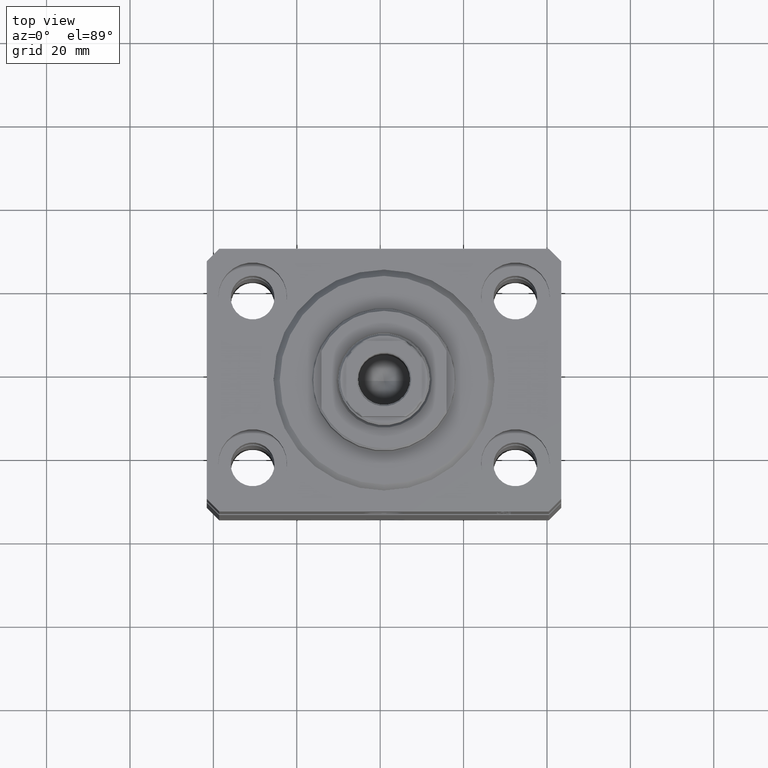
[diagram: clean part render]
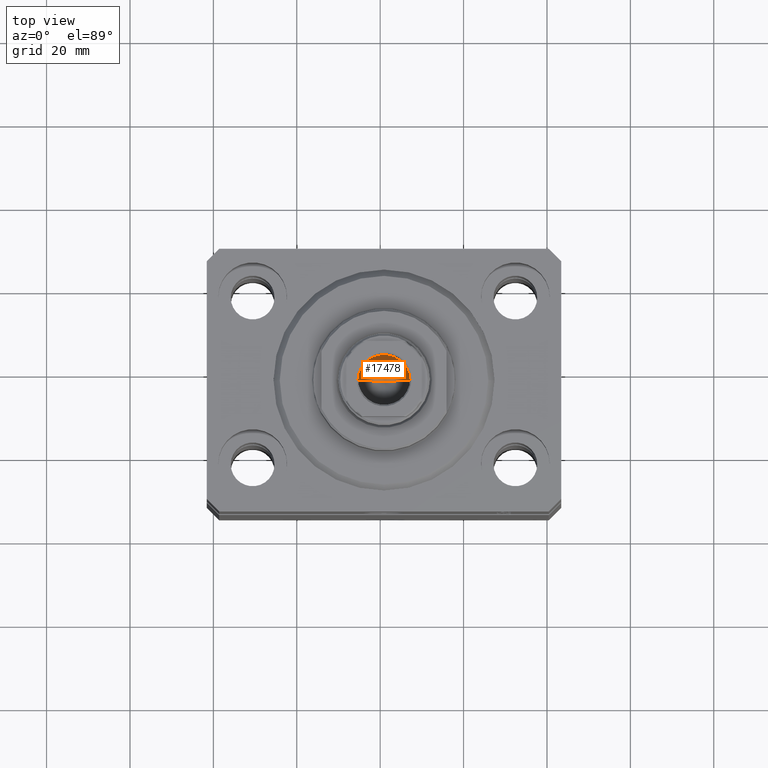
[diagram: same view with one face highlighted and labeled with its STEP entity id]
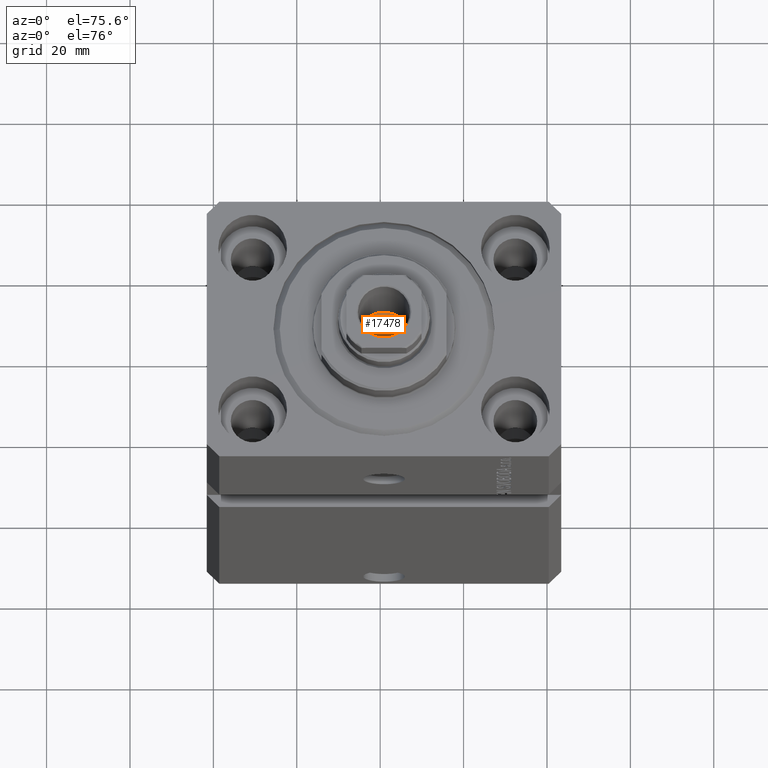
[diagram: same view with one face highlighted and labeled with its STEP entity id]
A machine part, top view. The second image highlights one B-rep face of the part: STEP entity #17478.
A second angle (auxiliary view) of the same face is appended — the face is thin or edge-on in the first view.
In plain terms, the highlighted conical surface has half-angle 59 deg.
Its self-contained STEP definition (entity closure, byte-faithful):
#1386 = DIRECTION ( 'NONE',  ( -0.8571673007021115565, 1.049727191138617710E-16, 0.5150380749100554878 ) ) ;
#2218 = LINE ( 'NONE', #25649, #43737 ) ;
#3211 = EDGE_CURVE ( 'NONE', #21120, #17275, #2218, .T. ) ;
#4603 = DIRECTION ( 'NONE',  ( 1.000000000000000000, 0.000000000000000000, 0.000000000000000000 ) ) ;
#7469 = EDGE_CURVE ( 'NONE', #21120, #38998, #16659, .T. ) ;
#9025 = VECTOR ( 'NONE', #9845, 1000.000000000000000 ) ;
#9644 = ORIENTED_EDGE ( 'NONE', *, *, #3211, .F. ) ;
#9845 = DIRECTION ( 'NONE',  ( 0.8571673007021115565, 0.000000000000000000, 0.5150380749100554878 ) ) ;
#10089 = EDGE_LOOP ( 'NONE', ( #9644, #15693, #13094 ) ) ;
#10518 = CARTESIAN_POINT ( 'NONE',  ( 6.249999999999993783, 0.000000000000000000, 103.5000000000000142 ) ) ;
#11638 = DIRECTION ( 'NONE',  ( -0.000000000000000000, -0.000000000000000000, 1.000000000000000000 ) ) ;
#12965 = AXIS2_PLACEMENT_3D ( 'NONE', #40352, #23383, #43990 ) ;
#13094 = ORIENTED_EDGE ( 'NONE', *, *, #22928, .T. ) ;
#14141 = CARTESIAN_POINT ( 'NONE',  ( -6.249999999999993783, 7.654042494670949718E-16, 103.5000000000000142 ) ) ;
#14620 = CARTESIAN_POINT ( 'NONE',  ( 0.000000000000000000, 0.000000000000000000, 103.5000000000000142 ) ) ;
#15693 = ORIENTED_EDGE ( 'NONE', *, *, #7469, .T. ) ;
#16659 = LINE ( 'NONE', #10518, #9025 ) ;
#17275 = VERTEX_POINT ( 'NONE', #14141 ) ;
#17478 = ADVANCED_FACE ( 'NONE', ( #33339 ), #39012, .F. ) ;
#20999 = AXIS2_PLACEMENT_3D ( 'NONE', #14620, #11638, #4603 ) ;
#21120 = VERTEX_POINT ( 'NONE', #33437 ) ;
#22928 = EDGE_CURVE ( 'NONE', #38998, #17275, #34001, .T. ) ;
#23383 = DIRECTION ( 'NONE',  ( -0.000000000000000000, -0.000000000000000000, 1.000000000000000000 ) ) ;
#25649 = CARTESIAN_POINT ( 'NONE',  ( -6.249999999999993783, 7.654042494670949718E-16, 103.5000000000000142 ) ) ;
#33339 = FACE_OUTER_BOUND ( 'NONE', #10089, .T. ) ;
#33437 = CARTESIAN_POINT ( 'NONE',  ( -7.434177670704979810E-15, 0.000000000000000000, 99.74462113107774996 ) ) ;
#34001 = CIRCLE ( 'NONE', #20999, 6.249999999999993783 ) ;
#38998 = VERTEX_POINT ( 'NONE', #41052 ) ;
#39012 = CONICAL_SURFACE ( 'NONE', #12965, 6.249999999999993783, 1.029744258676652979 ) ;
#40352 = CARTESIAN_POINT ( 'NONE',  ( 0.000000000000000000, 0.000000000000000000, 103.5000000000000142 ) ) ;
#41052 = CARTESIAN_POINT ( 'NONE',  ( 6.249999999999993783, 0.000000000000000000, 103.5000000000000142 ) ) ;
#43737 = VECTOR ( 'NONE', #1386, 1000.000000000000000 ) ;
#43990 = DIRECTION ( 'NONE',  ( 1.000000000000000000, 0.000000000000000000, 0.000000000000000000 ) ) ;